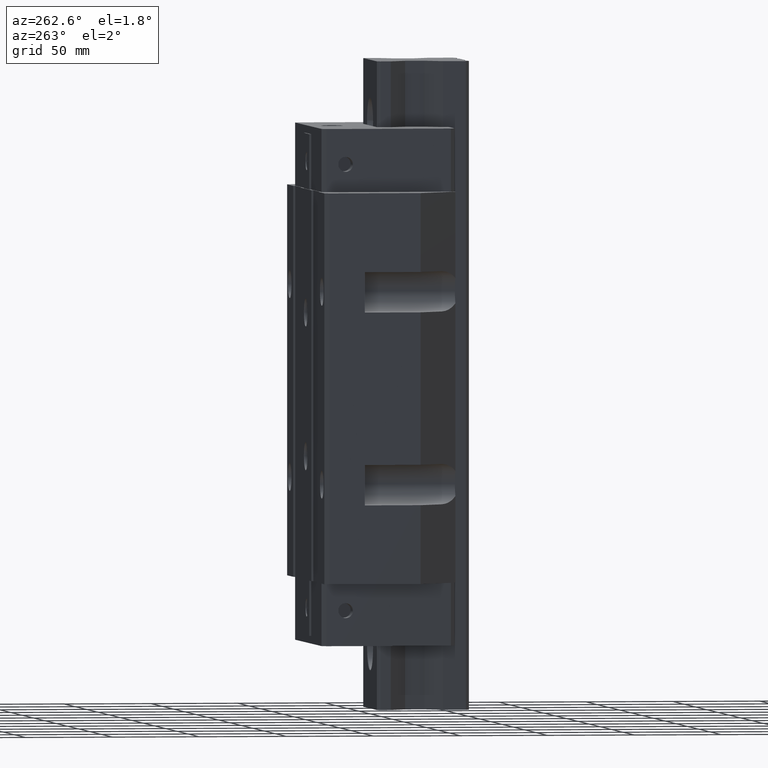
[diagram: clean part render]
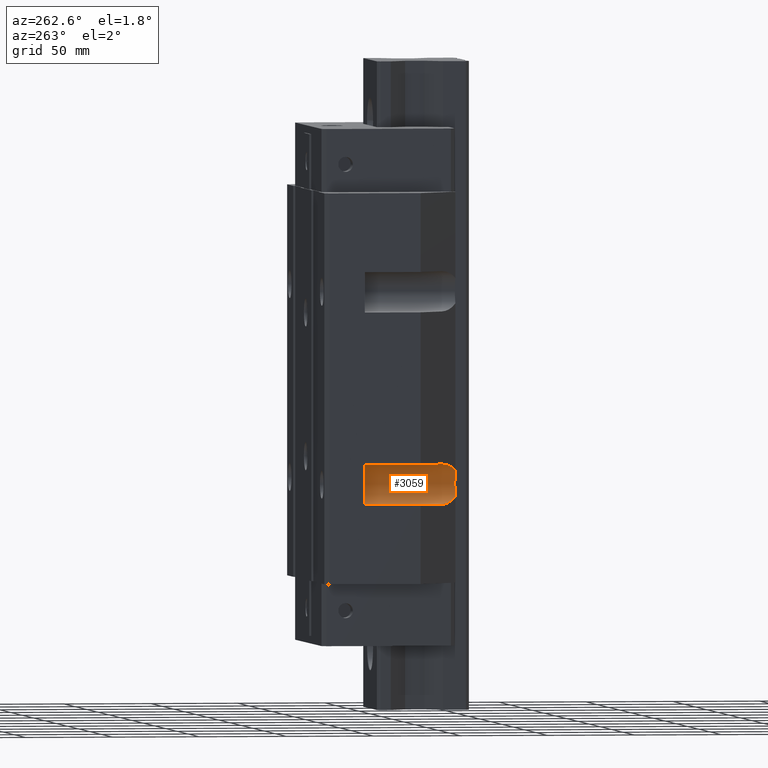
[diagram: same view with one face highlighted and labeled with its STEP entity id]
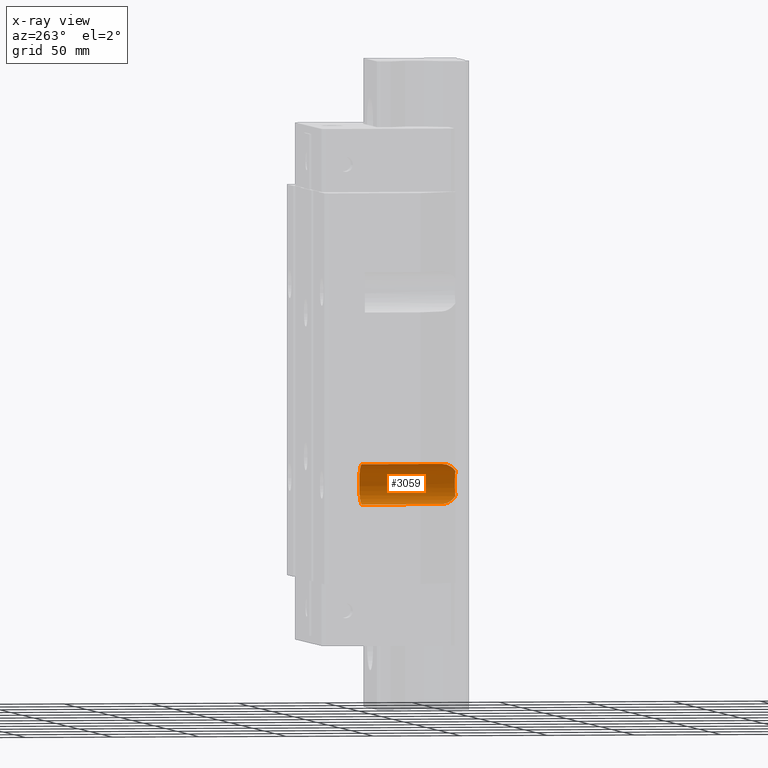
[diagram: x-ray of the same camera — body ghosted, the highlighted face saturated]
A machine part, auxiliary view. The second image highlights one B-rep face of the part: STEP entity #3059.
The next image is the same camera in x-ray: the body ghosted, the highlighted face saturated — about 0% of this face is hidden behind the body in this view.
In plain terms, the highlighted cylindrical surface (edge-blend (fillet) strip) has radius 11.5 mm, axis along (0, 1, 0).
Its self-contained STEP definition (entity closure, byte-faithful):
#767=CARTESIAN_POINT('',(-7.1E1,-7.7999992E1,-5.5E1));
#768=DIRECTION('',(0.E0,-1.E0,0.E0));
#769=DIRECTION('',(7.826034782609E-1,0.E0,-6.225205183879E-1));
#770=AXIS2_PLACEMENT_3D('',#767,#768,#769);
#805=CARTESIAN_POINT('',(-7.1E1,-6.9000052E1,-4.35E1));
#806=CARTESIAN_POINT('',(-6.930549395311E1,-7.069455804688E1,-4.35E1));
#807=CARTESIAN_POINT('',(-6.611164746775E1,-7.388840453225E1,
-4.422591838351E1));
#808=CARTESIAN_POINT('',(-6.326651662230E1,-7.673353537770E1,
-4.624888441646E1));
#809=CARTESIAN_POINT('',(-6.200006E1,-7.7999992E1,-4.784101403854E1));
#811=CARTESIAN_POINT('',(-6.200006E1,-7.7999992E1,-6.215898596146E1));
#812=CARTESIAN_POINT('',(-6.326651662230E1,-7.673353537770E1,
-6.375111558354E1));
#813=CARTESIAN_POINT('',(-6.611164746775E1,-7.388840453225E1,
-6.577408161649E1));
#814=CARTESIAN_POINT('',(-6.930549395311E1,-7.069455804688E1,-6.65E1));
#815=CARTESIAN_POINT('',(-7.1E1,-6.9000052E1,-6.65E1));
#817=DIRECTION('',(0.E0,1.E0,0.E0));
#818=VECTOR('',#817,4.6000052E1);
#819=CARTESIAN_POINT('',(-7.1E1,-6.9000052E1,-6.65E1));
#820=LINE('',#819,#818);
#821=DIRECTION('',(0.E0,-1.E0,0.E0));
#822=VECTOR('',#821,4.6000052E1);
#823=CARTESIAN_POINT('',(-7.1E1,-2.3E1,-4.35E1));
#824=LINE('',#823,#822);
#881=CARTESIAN_POINT('',(-7.1E1,-2.3E1,-5.5E1));
#882=DIRECTION('',(0.E0,1.E0,0.E0));
#883=DIRECTION('',(0.E0,0.E0,1.E0));
#884=AXIS2_PLACEMENT_3D('',#881,#882,#883);
#1715=CARTESIAN_POINT('',(-6.200006E1,-7.7999992E1,-6.215898596146E1));
#1716=VERTEX_POINT('',#1715);
#1717=CARTESIAN_POINT('',(-6.200006E1,-7.7999992E1,-4.784101403854E1));
#1718=VERTEX_POINT('',#1717);
#1933=VERTEX_POINT('',#805);
#1938=VERTEX_POINT('',#815);
#1939=CARTESIAN_POINT('',(-7.1E1,-2.3E1,-6.65E1));
#1940=VERTEX_POINT('',#1939);
#1941=CARTESIAN_POINT('',(-7.1E1,-2.3E1,-4.35E1));
#1942=VERTEX_POINT('',#1941);
#3042=CARTESIAN_POINT('',(-7.1E1,-2.3E1,-5.5E1));
#3043=DIRECTION('',(0.E0,1.E0,0.E0));
#3044=DIRECTION('',(0.E0,0.E0,1.E0));
#3045=AXIS2_PLACEMENT_3D('',#3042,#3043,#3044);
#3046=CYLINDRICAL_SURFACE('',#3045,1.15E1);
#3048=ORIENTED_EDGE('',*,*,#3047,.T.);
#3049=ORIENTED_EDGE('',*,*,#3000,.F.);
#3050=ORIENTED_EDGE('',*,*,#3031,.T.);
#3052=ORIENTED_EDGE('',*,*,#3051,.T.);
#3054=ORIENTED_EDGE('',*,*,#3053,.F.);
#3056=ORIENTED_EDGE('',*,*,#3055,.T.);
#3057=EDGE_LOOP('',(#3048,#3049,#3050,#3052,#3054,#3056));
#3058=FACE_OUTER_BOUND('',#3057,.F.);
#3059=ADVANCED_FACE('',(#3058),#3046,.F.);
#771=CIRCLE('',#770,1.15E1);
#810=B_SPLINE_CURVE_WITH_KNOTS('',3,(#805,#806,#807,#808,#809),.UNSPECIFIED.,
.F.,.F.,(4,1,4),(0.E0,5.E-1,1.E0),.UNSPECIFIED.);
#816=B_SPLINE_CURVE_WITH_KNOTS('',3,(#811,#812,#813,#814,#815),.UNSPECIFIED.,
.F.,.F.,(4,1,4),(0.E0,5.E-1,1.E0),.UNSPECIFIED.);
#885=CIRCLE('',#884,1.15E1);
#3000=EDGE_CURVE('',#1716,#1718,#771,.T.);
#3031=EDGE_CURVE('',#1716,#1938,#816,.T.);
#3047=EDGE_CURVE('',#1933,#1718,#810,.T.);
#3051=EDGE_CURVE('',#1938,#1940,#820,.T.);
#3053=EDGE_CURVE('',#1942,#1940,#885,.T.);
#3055=EDGE_CURVE('',#1942,#1933,#824,.T.);